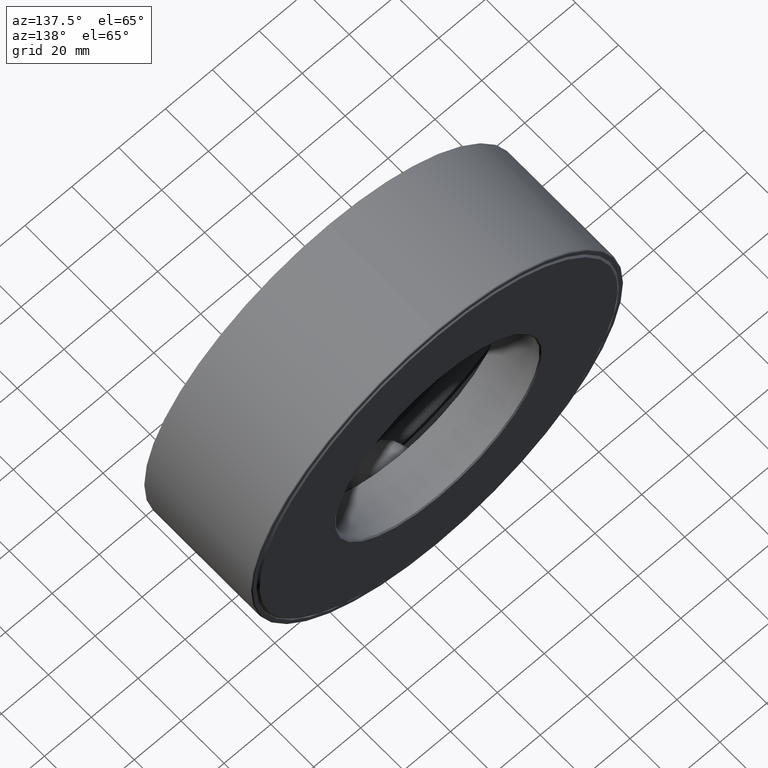
[diagram: clean part render]
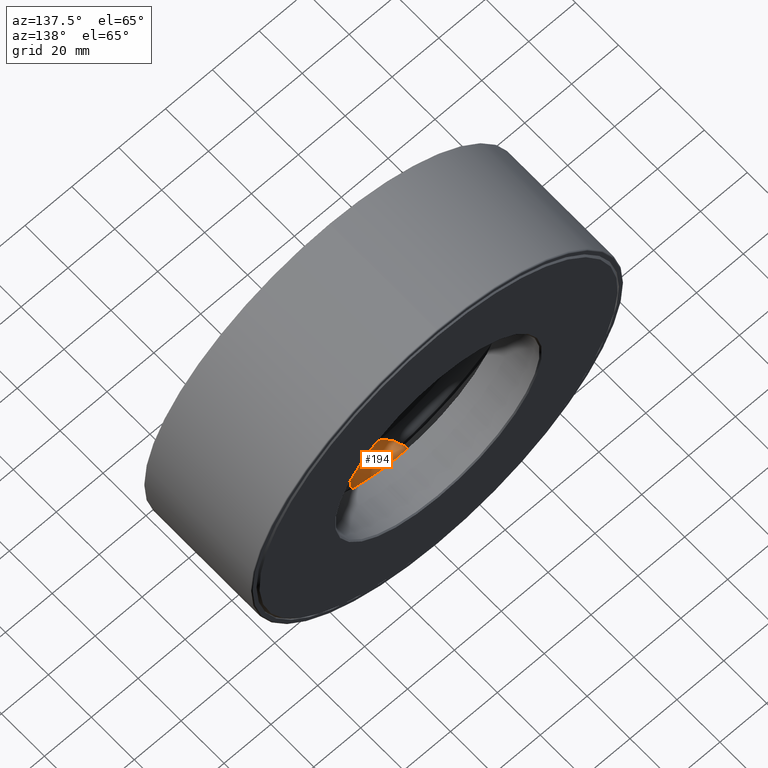
[diagram: same view with one face highlighted and labeled with its STEP entity id]
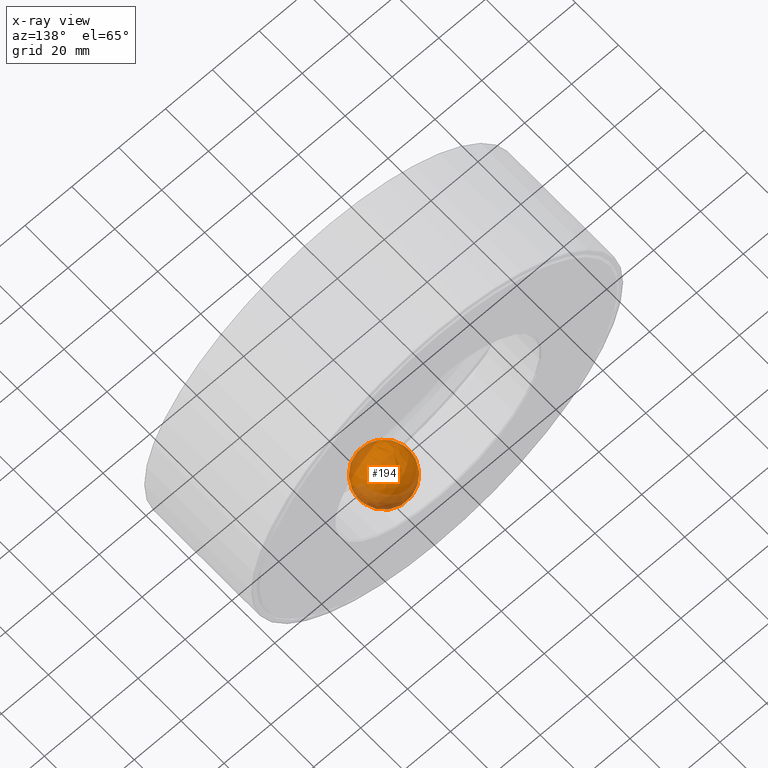
[diagram: x-ray of the same camera — body ghosted, the highlighted face saturated]
A machine part, auxiliary view. The second image highlights one B-rep face of the part: STEP entity #194.
The next image is the same camera in x-ray: the body ghosted, the highlighted face saturated — about 33% of this face is hidden behind the body in this view.
In plain terms, the highlighted spherical surface has radius 11.1125 mm.
Its self-contained STEP definition (entity closure, byte-faithful):
#20 = AXIS2_PLACEMENT_3D ( 'NONE', #86, #510, #230 ) ;
#81 = SPHERICAL_SURFACE ( 'NONE', #20, 0.4374999999999998300 ) ;
#86 = CARTESIAN_POINT ( 'NONE',  ( -2.784630941794340900E-014, 0.9999999999999996700, -2.658500000000000100 ) ) ;
#194 = ADVANCED_FACE ( 'NONE', ( ), #81, .T. ) ;
#230 = DIRECTION ( 'NONE',  ( 1.047444401652939700E-014, 0.0000000000000000000, 1.000000000000000000 ) ) ;
#510 = DIRECTION ( 'NONE',  ( 1.000000000000000000, 0.0000000000000000000, -1.047444401652939500E-014 ) ) ;